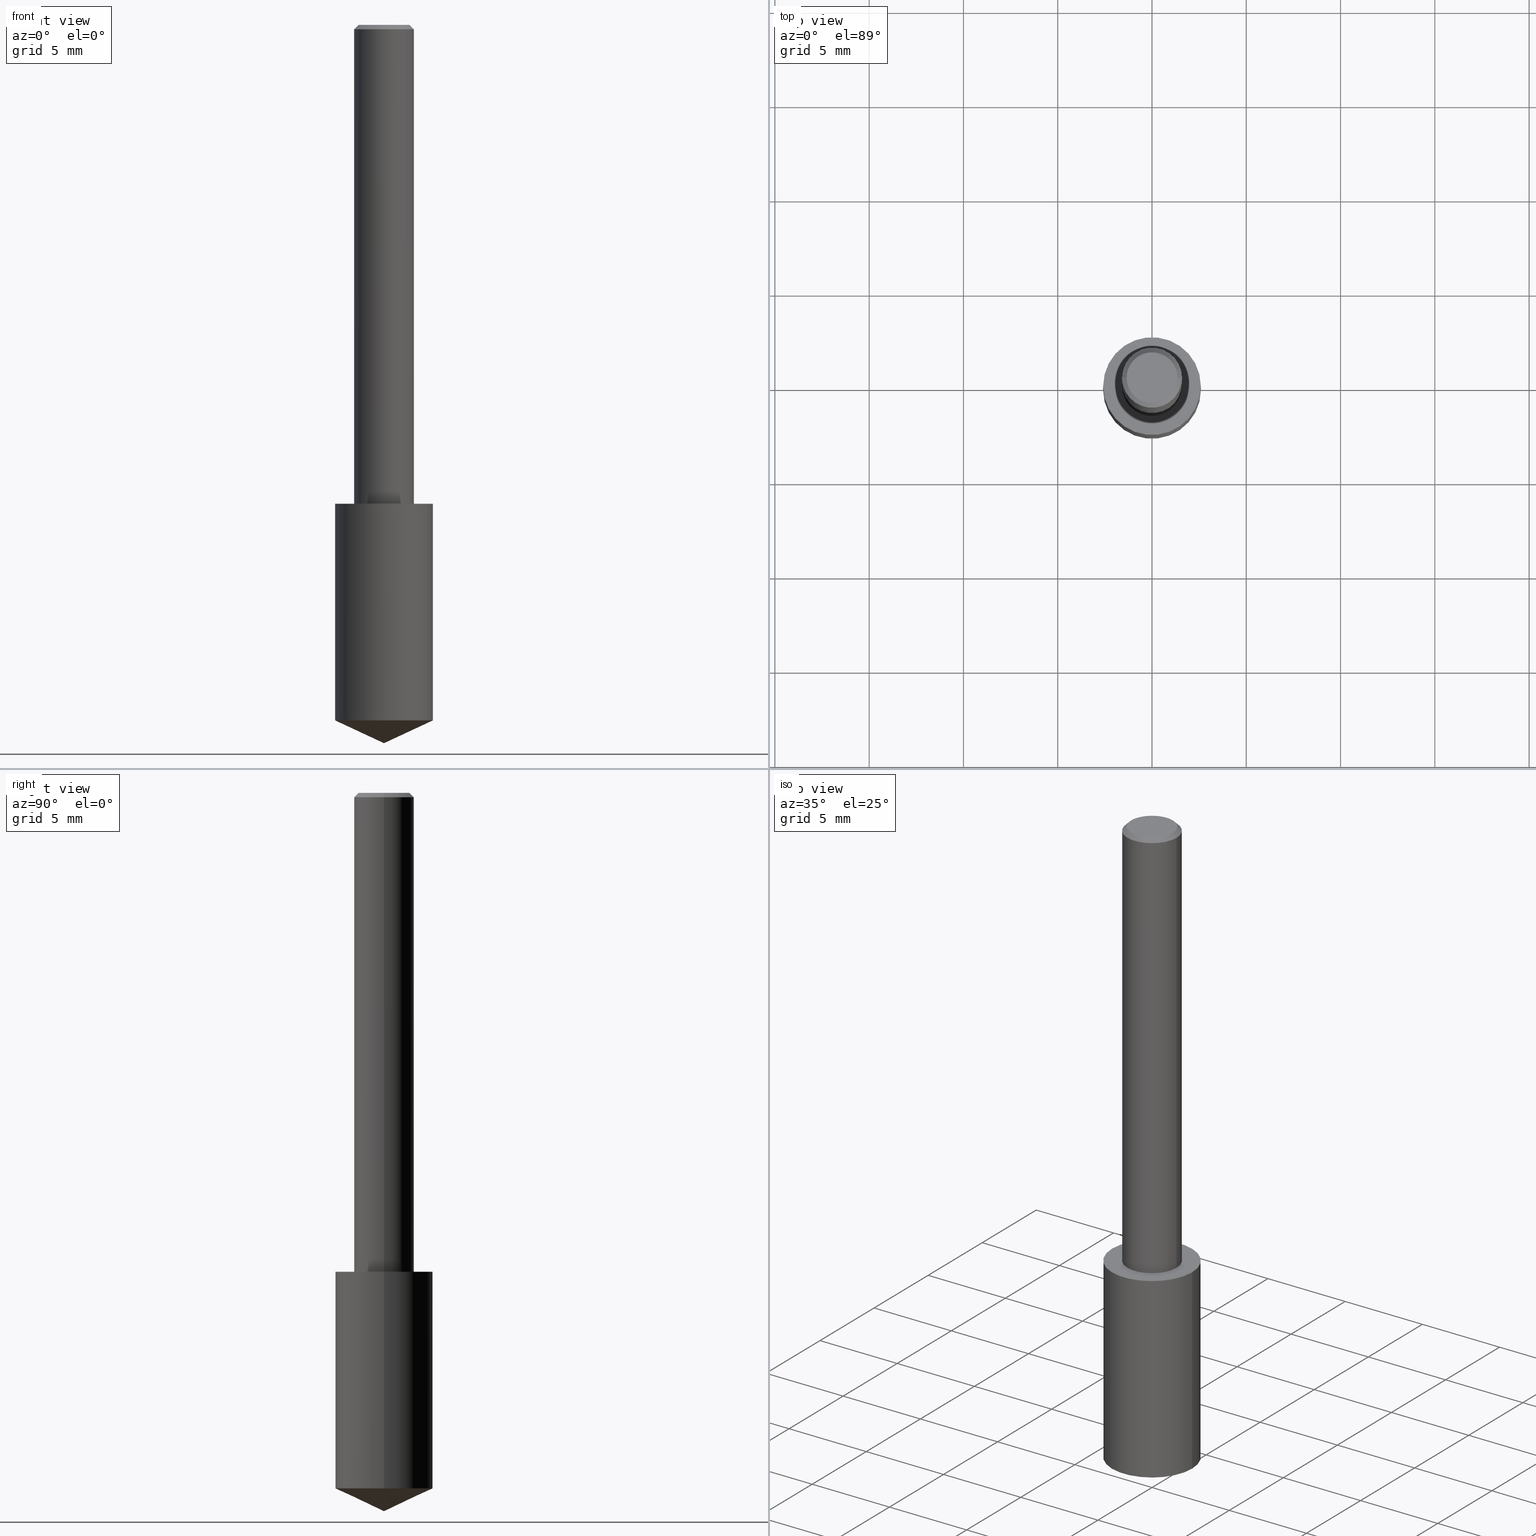
[diagram: canonical four-view strip — front | top / right | iso, engineering-drawing reading convention]
A machine part, canonical four-view strip (front | top / right | iso — engineering-drawing reading convention). The complete STEP part file that produces these views, byte-faithful:
ISO-10303-21;
HEADER;
FILE_DESCRIPTION (( 'STEP AP203' ),
    '1' );
FILE_NAME ('06138.STEP',
    '2024-04-30T18:30:47',
    ( '' ),
    ( '' ),
    'SwSTEP 2.0',
    'SolidWorks 2023',
    '' );
FILE_SCHEMA (( 'CONFIG_CONTROL_DESIGN' ));
ENDSEC;

DATA;
#1 = DATE_TIME_ROLE ( 'classification_date' ) ;
#2 = CIRCLE ( 'NONE', #302, 0.06250000000000012490 ) ;
#3 = DIRECTION ( 'NONE',  ( -2.438088387897960049E-29, 3.491481338843145188E-15, 1.000000000000000000 ) ) ;
#4 = APPROVAL_PERSON_ORGANIZATION ( #162, #103, #321 ) ;
#5 = MECHANICAL_CONTEXT ( 'NONE', #170, 'mechanical' ) ;
#6 = DIRECTION ( 'NONE',  ( 2.445468806185136597E-29, -3.491481338843145583E-15, -1.000000000000000000 ) ) ;
#7 = CARTESIAN_POINT ( 'NONE',  ( -0.06250000000000012490, -1.318017778347335489E-15, -1.000000000000000222 ) ) ;
#8 = DIRECTION ( 'NONE',  ( 1.000000000000000000, -6.982962677686266711E-15, 0.000000000000000000 ) ) ;
#9 = CARTESIAN_POINT ( 'NONE',  ( -0.1019999999999999796, -4.346401760155420845E-15, -1.452436618868190976 ) ) ;
#10 = PRODUCT ( '06138', '06138', '', ( #5 ) ) ;
#11 = ORIENTED_EDGE ( 'NONE', *, *, #274, .F. ) ;
#12 = ADVANCED_FACE ( 'NONE', ( #126 ), #179, .F. ) ;
#13 = ORIENTED_EDGE ( 'NONE', *, *, #211, .F. ) ;
#14 = VERTEX_POINT ( 'NONE', #284 ) ;
#15 = ORIENTED_EDGE ( 'NONE', *, *, #274, .T. ) ;
#16 = CIRCLE ( 'NONE', #66, 0.06250000000000000000 ) ;
#17 = EDGE_LOOP ( 'NONE', ( #332, #44, #277 ) ) ;
#18 = FACE_OUTER_BOUND ( 'NONE', #310, .T. ) ;
#19 = COORDINATED_UNIVERSAL_TIME_OFFSET ( 5, 0, .BEHIND. ) ;
#20 = APPROVAL_PERSON_ORGANIZATION ( #317, #271, #207 ) ;
#21 = DATE_AND_TIME ( #186, #32 ) ;
#22 = AXIS2_PLACEMENT_3D ( 'NONE', #197, #220, #163 ) ;
#23 = CARTESIAN_POINT ( 'NONE',  ( 2.292627005798582375E-31, -3.273263755165473266E-17, -0.009375000000000069042 ) ) ;
#24 = ADVANCED_FACE ( 'NONE', ( #18 ), #136, .F. ) ;
#25 = DIRECTION ( 'NONE',  ( -2.445468806185136597E-29, 3.491481338843145583E-15, 1.000000000000000000 ) ) ;
#26 = COORDINATED_UNIVERSAL_TIME_OFFSET ( 5, 0, .BEHIND. ) ;
#27 = DIRECTION ( 'NONE',  ( -2.445468806185136597E-29, 3.491481338843145583E-15, 1.000000000000000000 ) ) ;
#28 =( CONVERSION_BASED_UNIT ( 'INCH', #52 ) LENGTH_UNIT ( ) NAMED_UNIT ( #288 ) );
#29 = DIRECTION ( 'NONE',  ( 0.9063077870366522681, -4.853149677051413500E-15, 0.4226182617406944453 ) ) ;
#30 = CIRCLE ( 'NONE', #222, 0.06250000000000000000 ) ;
#31 = CARTESIAN_POINT ( 'NONE',  ( -9.261009624683002666E-28, 1.322226732217803884E-13, 37.87007874015748143 ) ) ;
#32 = LOCAL_TIME ( 14, 30, 47.00000000000000000, #137 ) ;
#33 = DIRECTION ( 'NONE',  ( -2.445468806185136877E-29, 3.491481338843145188E-15, 1.000000000000000000 ) ) ;
#34 = DIRECTION ( 'NONE',  ( -2.445468806185136597E-29, 3.491481338843145583E-15, 1.000000000000000000 ) ) ;
#35 = DIRECTION ( 'NONE',  ( -2.445468806185136877E-29, 3.491481338843145188E-15, 1.000000000000000000 ) ) ;
#36 = AXIS2_PLACEMENT_3D ( 'NONE', #133, #315, #262 ) ;
#37 = PRODUCT_DEFINITION_FORMATION_WITH_SPECIFIED_SOURCE ( 'ANY', '', #10, .NOT_KNOWN. ) ;
#38 = ADVANCED_FACE ( 'NONE', ( #286 ), #130, .T. ) ;
#39 = UNCERTAINTY_MEASURE_WITH_UNIT (LENGTH_MEASURE( 1.000000000000000082E-05 ), #28, 'distance_accuracy_value', 'NONE');
#40 = ORIENTED_EDGE ( 'NONE', *, *, #121, .T. ) ;
#41 = LINE ( 'NONE', #123, #147 ) ;
#42 = EDGE_LOOP ( 'NONE', ( #122, #334, #152, #13 ) ) ;
#43 = CC_DESIGN_APPROVAL ( #153, ( #37 ) ) ;
#44 = ORIENTED_EDGE ( 'NONE', *, *, #96, .T. ) ;
#45 = ORIENTED_EDGE ( 'NONE', *, *, #93, .T. ) ;
#46 = EDGE_LOOP ( 'NONE', ( #330, #45, #11 ) ) ;
#47 = EDGE_CURVE ( 'NONE', #253, #151, #199, .T. ) ;
#48 = CC_DESIGN_SECURITY_CLASSIFICATION ( #92, ( #37 ) ) ;
#49 = CARTESIAN_POINT ( 'NONE',  ( 3.380586089561100966E-29, -2.152340165478311368E-15, -1.000000000000000222 ) ) ;
#50 = APPLICATION_PROTOCOL_DEFINITION ( 'international standard', 'config_control_design', 1994, #170 ) ;
#51 = DIRECTION ( 'NONE',  ( 1.000000000000000000, -6.982962677686266711E-15, 4.876176775795935793E-29 ) ) ;
#52 = LENGTH_MEASURE_WITH_UNIT ( LENGTH_MEASURE( 0.02539999999999999897 ), #325 );
#53 = FACE_OUTER_BOUND ( 'NONE', #71, .T. ) ;
#54 = AXIS2_PLACEMENT_3D ( 'NONE', #214, #232, #187 ) ;
#55 = DIRECTION ( 'NONE',  ( 1.000000000000000000, 0.000000000000000000, 0.000000000000000000 ) ) ;
#56 = SECURITY_CLASSIFICATION_LEVEL ( 'unclassified' ) ;
#57 = DIRECTION ( 'NONE',  ( 2.445468806185136597E-29, -3.491481338843145583E-15, -1.000000000000000000 ) ) ;
#58 = ADVANCED_FACE ( 'NONE', ( #316 ), #156, .T. ) ;
#59 = DATE_AND_TIME ( #87, #336 ) ;
#60 = CARTESIAN_POINT ( 'NONE',  ( 2.445468806185137438E-29, -3.491481338843146371E-15, -1.000000000000000222 ) ) ;
#61 = AXIS2_PLACEMENT_3D ( 'NONE', #291, #27, #238 ) ;
#62 = CARTESIAN_POINT ( 'NONE',  ( 2.292627005798582375E-31, -3.273263755165473266E-17, -0.009375000000000069042 ) ) ;
#63 = DIRECTION ( 'NONE',  ( 1.000000000000000000, -6.982962677686265922E-15, 4.876176775795935793E-29 ) ) ;
#64 = FACE_OUTER_BOUND ( 'NONE', #17, .T. ) ;
#65 = EDGE_CURVE ( 'NONE', #97, #67, #283, .T. ) ;
#66 = AXIS2_PLACEMENT_3D ( 'NONE', #23, #215, #86 ) ;
#67 = VERTEX_POINT ( 'NONE', #9 ) ;
#68 = CC_DESIGN_DATE_AND_TIME_ASSIGNMENT ( #237, #1, ( #92 ) ) ;
#69 = ORIENTED_EDGE ( 'NONE', *, *, #47, .T. ) ;
#70 = CLOSED_SHELL ( 'NONE', ( #249, #280, #172, #58, #24 ) ) ;
#71 = EDGE_LOOP ( 'NONE', ( #125, #205, #306, #40 ) ) ;
#72 = ORIENTED_EDGE ( 'NONE', *, *, #149, .T. ) ;
#73 = EDGE_CURVE ( 'NONE', #279, #303, #41, .T. ) ;
#74 = ORIENTED_EDGE ( 'NONE', *, *, #180, .F. ) ;
#75 = LINE ( 'NONE', #234, #231 ) ;
#76 = DIRECTION ( 'NONE',  ( 2.438088387897960049E-29, -3.491481338843145188E-15, -1.000000000000000000 ) ) ;
#77 = AXIS2_PLACEMENT_3D ( 'NONE', #49, #104, #154 ) ;
#78 =( NAMED_UNIT ( * ) PLANE_ANGLE_UNIT ( ) SI_UNIT ( $, .RADIAN. ) );
#79 = LINE ( 'NONE', #320, #208 ) ;
#80 = ADVANCED_FACE ( 'NONE', ( #53 ), #335, .T. ) ;
#81 = PERSON_AND_ORGANIZATION ( #91, #223 ) ;
#82 = CARTESIAN_POINT ( 'NONE',  ( 3.551888444403171231E-29, -5.071155350630722890E-15, -1.452436618868190976 ) ) ;
#83 = CALENDAR_DATE ( 2024, 30, 4 ) ;
#84 = AXIS2_PLACEMENT_3D ( 'NONE', #213, #135, #107 ) ;
#85 = LOCAL_TIME ( 14, 30, 47.00000000000000000, #26 ) ;
#86 = DIRECTION ( 'NONE',  ( 1.000000000000000000, -6.982962677686266711E-15, 0.000000000000000000 ) ) ;
#87 = CALENDAR_DATE ( 2024, 30, 4 ) ;
#88 = CARTESIAN_POINT ( 'NONE',  ( -0.06250000000000006939, 4.440892098500631092E-16, -3.074334431409319267E-30 ) ) ;
#89 = CARTESIAN_POINT ( 'NONE',  ( 0.06250000000000012490, -3.927916506198539224E-15, -1.000000000000000222 ) ) ;
#90 = DIRECTION ( 'NONE',  ( 1.000000000000000000, -6.982962677686266711E-15, 0.000000000000000000 ) ) ;
#91 = PERSON ( 'UNSPECIFIED', 'UNSPECIFIED', 'UNSPECIFIED', ('UNSPECIFIED'), ('UNSPECIFIED'), ('UNSPECIFIED') ) ;
#92 = SECURITY_CLASSIFICATION ( '', '', #56 ) ;
#93 = EDGE_CURVE ( 'NONE', #14, #97, #293, .T. ) ;
#94 = CARTESIAN_POINT ( 'NONE',  ( -0.06250000000000000000, -1.318017778347336672E-15, -0.009375000000000069042 ) ) ;
#95 = AXIS2_PLACEMENT_3D ( 'NONE', #108, #258, #51 ) ;
#96 = EDGE_CURVE ( 'NONE', #14, #67, #79, .T. ) ;
#97 = VERTEX_POINT ( 'NONE', #184 ) ;
#98 = ORIENTED_EDGE ( 'NONE', *, *, #141, .F. ) ;
#99 = CIRCLE ( 'NONE', #84, 0.05312499999999999861 ) ;
#100 = ORIENTED_EDGE ( 'NONE', *, *, #127, .T. ) ;
#101 = EDGE_LOOP ( 'NONE', ( #150, #178 ) ) ;
#102 = DIRECTION ( 'NONE',  ( 1.000000000000000000, -6.982962677686266711E-15, 4.876176775795935793E-29 ) ) ;
#103 = APPROVAL ( #295, 'UNSPECIFIED' ) ;
#104 = DIRECTION ( 'NONE',  ( 2.438088387897960049E-29, -3.491481338843145188E-15, -1.000000000000000000 ) ) ;
#105 = AXIS2_PLACEMENT_3D ( 'NONE', #206, #311, #301 ) ;
#106 =( NAMED_UNIT ( * ) SI_UNIT ( $, .STERADIAN. ) SOLID_ANGLE_UNIT ( ) );
#107 = DIRECTION ( 'NONE',  ( 1.000000000000000000, -6.982962677686266711E-15, 4.876176628004948512E-29 ) ) ;
#108 = CARTESIAN_POINT ( 'NONE',  ( 0.000000000000000000, 0.000000000000000000, 0.000000000000000000 ) ) ;
#109 = PERSON_AND_ORGANIZATION ( #91, #223 ) ;
#110 = DIRECTION ( 'NONE',  ( -0.7071067811865450192, 2.468850131082230634E-15, -0.7071067811865500152 ) ) ;
#111 = CARTESIAN_POINT ( 'NONE',  ( -0.05312499999999999861, 3.873362110279099094E-16, 3.061616995216862494E-21 ) ) ;
#112 = CIRCLE ( 'NONE', #268, 0.1019999999999999934 ) ;
#113 = APPLICATION_PROTOCOL_DEFINITION ( 'international standard', 'config_control_design', 1994, #176 ) ;
#114 = DIRECTION ( 'NONE',  ( -2.445468806185136877E-29, 3.491481338843145188E-15, 1.000000000000000000 ) ) ;
#115 = CYLINDRICAL_SURFACE ( 'NONE', #139, 0.1019999999999999934 ) ;
#116 = LINE ( 'NONE', #140, #251 ) ;
#117 = PRODUCT_DEFINITION ( 'UNKNOWN', '', #37, #198 ) ;
#118 = CIRCLE ( 'NONE', #105, 0.1019999999999999934 ) ;
#119 = CARTESIAN_POINT ( 'NONE',  ( 0.05312499999999999861, -4.129888592719939842E-16, 3.061617000609493422E-21 ) ) ;
#120 = SHAPE_DEFINITION_REPRESENTATION ( #327, #146 ) ;
#121 = EDGE_CURVE ( 'NONE', #202, #303, #16, .T. ) ;
#122 = ORIENTED_EDGE ( 'NONE', *, *, #65, .T. ) ;
#123 = CARTESIAN_POINT ( 'NONE',  ( 0.06250000000000006939, -4.364351673553921624E-16, 3.047610484872463374E-30 ) ) ;
#124 = ORIENTED_EDGE ( 'NONE', *, *, #73, .F. ) ;
#125 = ORIENTED_EDGE ( 'NONE', *, *, #318, .F. ) ;
#126 = FACE_OUTER_BOUND ( 'NONE', #200, .T. ) ;
#127 = EDGE_CURVE ( 'NONE', #304, #279, #131, .T. ) ;
#128 = CALENDAR_DATE ( 2024, 30, 4 ) ;
#129 = DIRECTION ( 'NONE',  ( -0.9063077870366522681, 7.915267918739014631E-15, 0.4226182617406944453 ) ) ;
#130 = CYLINDRICAL_SURFACE ( 'NONE', #95, 0.06250000000000006939 ) ;
#131 = CIRCLE ( 'NONE', #36, 0.06250000000000012490 ) ;
#132 = PERSON_AND_ORGANIZATION_ROLE ( 'classification_officer' ) ;
#133 = CARTESIAN_POINT ( 'NONE',  ( 2.445468806185137438E-29, -3.491481338843146371E-15, -1.000000000000000222 ) ) ;
#134 = CALENDAR_DATE ( 2024, 30, 4 ) ;
#135 = DIRECTION ( 'NONE',  ( -2.445468806185136597E-29, 3.491481338843145583E-15, 1.000000000000000000 ) ) ;
#136 = PLANE ( 'NONE',  #77 ) ;
#137 = COORDINATED_UNIVERSAL_TIME_OFFSET ( 5, 0, .BEHIND. ) ;
#138 = CARTESIAN_POINT ( 'NONE',  ( 0.000000000000000000, 0.000000000000000000, 0.000000000000000000 ) ) ;
#139 = AXIS2_PLACEMENT_3D ( 'NONE', #60, #34, #8 ) ;
#140 = CARTESIAN_POINT ( 'NONE',  ( 0.1019999999999999934, -4.203743531967145466E-15, -1.000000000000000222 ) ) ;
#141 = EDGE_CURVE ( 'NONE', #151, #202, #75, .T. ) ;
#142 = DIRECTION ( 'NONE',  ( 0.7071067811865450192, -7.319954787623246579E-15, -0.7071067811865500152 ) ) ;
#143 = CLOSED_SHELL ( 'NONE', ( #285, #38, #218, #175, #80, #12 ) ) ;
#144 = CC_DESIGN_APPROVAL ( #271, ( #117 ) ) ;
#145 = DIRECTION ( 'NONE',  ( 1.000000000000000000, -6.982962677686266711E-15, 0.000000000000000000 ) ) ;
#146 = ADVANCED_BREP_SHAPE_REPRESENTATION ( '06138', ( #329, #221, #242 ), #164 ) ;
#147 = VECTOR ( 'NONE', #305, 39.37007874015748143 ) ;
#148 = ORIENTED_EDGE ( 'NONE', *, *, #180, .T. ) ;
#149 = EDGE_CURVE ( 'NONE', #151, #253, #99, .T. ) ;
#150 = ORIENTED_EDGE ( 'NONE', *, *, #299, .F. ) ;
#151 = VERTEX_POINT ( 'NONE', #111 ) ;
#152 = ORIENTED_EDGE ( 'NONE', *, *, #265, .F. ) ;
#153 = APPROVAL ( #292, 'UNSPECIFIED' ) ;
#154 = DIRECTION ( 'NONE',  ( -1.000000000000000000, 6.982962677686265922E-15, -4.876176775795935793E-29 ) ) ;
#155 = CARTESIAN_POINT ( 'NONE',  ( 0.000000000000000000, 0.000000000000000000, 0.000000000000000000 ) ) ;
#156 = CYLINDRICAL_SURFACE ( 'NONE', #188, 0.1019999999999999934 ) ;
#157 = APPROVAL_DATE_TIME ( #239, #271 ) ;
#158 = CIRCLE ( 'NONE', #22, 0.1019999999999999934 ) ;
#159 = PERSON_AND_ORGANIZATION ( #91, #223 ) ;
#160 = CARTESIAN_POINT ( 'NONE',  ( 3.668203209277704895E-29, -5.237222008264718177E-15, -1.500000000000000222 ) ) ;
#161 = PRODUCT_RELATED_PRODUCT_CATEGORY ( 'detail', '', ( #10 ) ) ;
#162 = PERSON_AND_ORGANIZATION ( #91, #223 ) ;
#163 = DIRECTION ( 'NONE',  ( 1.000000000000000000, -6.982962677686266711E-15, 0.000000000000000000 ) ) ;
#164 =( GEOMETRIC_REPRESENTATION_CONTEXT ( 3 ) GLOBAL_UNCERTAINTY_ASSIGNED_CONTEXT ( ( #39 ) ) GLOBAL_UNIT_ASSIGNED_CONTEXT ( ( #28, #78, #106 ) ) REPRESENTATION_CONTEXT ( 'NONE', 'WORKASPACE' ) );
#165 = CC_DESIGN_PERSON_AND_ORGANIZATION_ASSIGNMENT ( #109, #212, ( #37 ) ) ;
#166 = CC_DESIGN_APPROVAL ( #103, ( #92 ) ) ;
#167 = DIRECTION ( 'NONE',  ( -2.445468806185136597E-29, 3.491481338843145583E-15, 1.000000000000000000 ) ) ;
#168 = DIRECTION ( 'NONE',  ( 1.000000000000000000, -6.982962677686264344E-15, 0.000000000000000000 ) ) ;
#169 = DIRECTION ( 'NONE',  ( -2.445468806185136597E-29, 3.491481338843145583E-15, 1.000000000000000000 ) ) ;
#170 = APPLICATION_CONTEXT ( 'configuration controlled 3d designs of mechanical parts and assemblies' ) ;
#171 = AXIS2_PLACEMENT_3D ( 'NONE', #138, #337, #102 ) ;
#172 = ADVANCED_FACE ( 'NONE', ( #209 ), #298, .T. ) ;
#173 = ORIENTED_EDGE ( 'NONE', *, *, #308, .F. ) ;
#174 = ORIENTED_EDGE ( 'NONE', *, *, #47, .F. ) ;
#175 = ADVANCED_FACE ( 'NONE', ( #190 ), #264, .T. ) ;
#176 = APPLICATION_CONTEXT ( 'configuration controlled 3d designs of mechanical parts and assemblies' ) ;
#177 = VECTOR ( 'NONE', #29, 39.37007874015748854 ) ;
#178 = ORIENTED_EDGE ( 'NONE', *, *, #127, .F. ) ;
#179 = PLANE ( 'NONE',  #319 ) ;
#180 = EDGE_CURVE ( 'NONE', #201, #229, #118, .T. ) ;
#181 = EDGE_LOOP ( 'NONE', ( #174, #257, #225, #98 ) ) ;
#182 = VECTOR ( 'NONE', #33, 39.37007874015748143 ) ;
#183 = DIRECTION ( 'NONE',  ( -1.000000000000000000, 6.982962677686265922E-15, -4.876176775795935793E-29 ) ) ;
#184 = CARTESIAN_POINT ( 'NONE',  ( 0.1019999999999999796, -5.783417543754722378E-15, -1.452436618868190976 ) ) ;
#185 = PERSON_AND_ORGANIZATION_ROLE ( 'design_owner' ) ;
#186 = CALENDAR_DATE ( 2024, 30, 4 ) ;
#187 = DIRECTION ( 'NONE',  ( 1.000000000000000000, -6.982962677686266711E-15, 4.876176628004948512E-29 ) ) ;
#188 = AXIS2_PLACEMENT_3D ( 'NONE', #210, #25, #313 ) ;
#189 = APPROVAL_STATUS ( 'not_yet_approved' ) ;
#190 = FACE_OUTER_BOUND ( 'NONE', #228, .T. ) ;
#191 = APPROVAL_DATE_TIME ( #21, #153 ) ;
#192 = PLANE ( 'NONE',  #307 ) ;
#193 = CC_DESIGN_PERSON_AND_ORGANIZATION_ASSIGNMENT ( #216, #290, ( #117 ) ) ;
#194 = CARTESIAN_POINT ( 'NONE',  ( -0.1019999999999999934, -2.766727748367844721E-15, -1.000000000000000222 ) ) ;
#195 = LOCAL_TIME ( 14, 30, 47.00000000000000000, #19 ) ;
#196 = CARTESIAN_POINT ( 'NONE',  ( 2.445468806185137438E-29, -3.491481338843146371E-15, -1.000000000000000222 ) ) ;
#197 = CARTESIAN_POINT ( 'NONE',  ( 2.445468806185136877E-29, -3.491481338843145977E-15, -1.000000000000000222 ) ) ;
#198 = DESIGN_CONTEXT ( 'detailed design', #176, 'design' ) ;
#199 = CIRCLE ( 'NONE', #54, 0.05312499999999999861 ) ;
#200 = EDGE_LOOP ( 'NONE', ( #72, #69 ) ) ;
#201 = VERTEX_POINT ( 'NONE', #326 ) ;
#202 = VERTEX_POINT ( 'NONE', #94 ) ;
#203 = CONICAL_SURFACE ( 'NONE', #278, 0.06250000000000000000, 0.7853981633974447263 ) ;
#204 = ORIENTED_EDGE ( 'NONE', *, *, #265, .T. ) ;
#205 = ORIENTED_EDGE ( 'NONE', *, *, #149, .F. ) ;
#206 = CARTESIAN_POINT ( 'NONE',  ( 2.445468806185136877E-29, -3.491481338843145977E-15, -1.000000000000000222 ) ) ;
#207 = APPROVAL_ROLE ( '' ) ;
#208 = VECTOR ( 'NONE', #129, 39.37007874015748854 ) ;
#209 = FACE_OUTER_BOUND ( 'NONE', #46, .T. ) ;
#210 = CARTESIAN_POINT ( 'NONE',  ( 2.445468806185137438E-29, -3.491481338843146371E-15, -1.000000000000000222 ) ) ;
#211 = EDGE_CURVE ( 'NONE', #97, #229, #116, .T. ) ;
#212 = PERSON_AND_ORGANIZATION_ROLE ( 'creator' ) ;
#213 = CARTESIAN_POINT ( 'NONE',  ( -7.487088864773345706E-50, 1.068957861474247695E-35, 3.061616997868395197E-21 ) ) ;
#214 = CARTESIAN_POINT ( 'NONE',  ( -7.487088864773345706E-50, 1.068957861474247695E-35, 3.061616997868395197E-21 ) ) ;
#215 = DIRECTION ( 'NONE',  ( -2.445468806185136597E-29, 3.491481338843145583E-15, 1.000000000000000000 ) ) ;
#216 = PERSON_AND_ORGANIZATION ( #91, #223 ) ;
#217 = DIRECTION ( 'NONE',  ( 1.000000000000000000, -6.982962677686266711E-15, 0.000000000000000000 ) ) ;
#218 = ADVANCED_FACE ( 'NONE', ( #248 ), #192, .F. ) ;
#219 = CARTESIAN_POINT ( 'NONE',  ( 0.06250000000000000000, -4.691678049070464390E-16, -0.009375000000000069042 ) ) ;
#220 = DIRECTION ( 'NONE',  ( -2.445468806185136597E-29, 3.491481338843145583E-15, 1.000000000000000000 ) ) ;
#221 = MANIFOLD_SOLID_BREP ( 'Body-Move/Copy2[2]', #143 ) ;
#222 = AXIS2_PLACEMENT_3D ( 'NONE', #297, #169, #217 ) ;
#223 = ORGANIZATION ( 'UNSPECIFIED', 'UNSPECIFIED', '' ) ;
#224 = CARTESIAN_POINT ( 'NONE',  ( 2.445468806185137438E-29, -3.491481338843146371E-15, -1.000000000000000222 ) ) ;
#225 = ORIENTED_EDGE ( 'NONE', *, *, #246, .T. ) ;
#226 = VECTOR ( 'NONE', #142, 39.37007874015748143 ) ;
#227 = CC_DESIGN_PERSON_AND_ORGANIZATION_ASSIGNMENT ( #81, #185, ( #10 ) ) ;
#228 = EDGE_LOOP ( 'NONE', ( #333, #100, #275, #254 ) ) ;
#229 = VERTEX_POINT ( 'NONE', #267 ) ;
#230 = EDGE_LOOP ( 'NONE', ( #173, #15, #309, #74 ) ) ;
#231 = VECTOR ( 'NONE', #110, 39.37007874015748143 ) ;
#232 = DIRECTION ( 'NONE',  ( -2.445468806185136597E-29, 3.491481338843145583E-15, 1.000000000000000000 ) ) ;
#233 = PERSON_AND_ORGANIZATION ( #91, #223 ) ;
#234 = CARTESIAN_POINT ( 'NONE',  ( -0.06250000000000000000, 4.037025298037369491E-16, -0.009375000000000069042 ) ) ;
#235 = AXIS2_PLACEMENT_3D ( 'NONE', #82, #289, #276 ) ;
#236 = DATE_TIME_ROLE ( 'creation_date' ) ;
#237 = DATE_AND_TIME ( #134, #273 ) ;
#238 = DIRECTION ( 'NONE',  ( 1.000000000000000000, -6.982962677686266711E-15, 0.000000000000000000 ) ) ;
#239 = DATE_AND_TIME ( #128, #195 ) ;
#240 = EDGE_CURVE ( 'NONE', #304, #202, #269, .T. ) ;
#241 = FACE_OUTER_BOUND ( 'NONE', #181, .T. ) ;
#242 = AXIS2_PLACEMENT_3D ( 'NONE', #155, #314, #55 ) ;
#243 = APPROVAL_PERSON_ORGANIZATION ( #233, #153, #312 ) ;
#244 = FACE_OUTER_BOUND ( 'NONE', #42, .T. ) ;
#245 = DIRECTION ( 'NONE',  ( -2.445468806185136597E-29, 3.491481338843145583E-15, 1.000000000000000000 ) ) ;
#246 = EDGE_CURVE ( 'NONE', #303, #202, #30, .T. ) ;
#247 = AXIS2_PLACEMENT_3D ( 'NONE', #340, #57, #260 ) ;
#248 = FACE_OUTER_BOUND ( 'NONE', #101, .T. ) ;
#249 = ADVANCED_FACE ( 'NONE', ( #244 ), #115, .T. ) ;
#250 = EDGE_LOOP ( 'NONE', ( #282, #281, #252, #124 ) ) ;
#251 = VECTOR ( 'NONE', #35, 39.37007874015748143 ) ;
#252 = ORIENTED_EDGE ( 'NONE', *, *, #246, .F. ) ;
#253 = VERTEX_POINT ( 'NONE', #119 ) ;
#254 = ORIENTED_EDGE ( 'NONE', *, *, #121, .F. ) ;
#255 = CC_DESIGN_PERSON_AND_ORGANIZATION_ASSIGNMENT ( #338, #287, ( #37 ) ) ;
#256 = VECTOR ( 'NONE', #114, 39.37007874015748143 ) ;
#257 = ORIENTED_EDGE ( 'NONE', *, *, #318, .T. ) ;
#258 = DIRECTION ( 'NONE',  ( -2.445468806185136597E-29, 3.491481338843145583E-15, 1.000000000000000000 ) ) ;
#259 = DATE_AND_TIME ( #83, #85 ) ;
#260 = DIRECTION ( 'NONE',  ( -1.000000000000000000, 6.982962677686266711E-15, 0.000000000000000000 ) ) ;
#261 = COORDINATED_UNIVERSAL_TIME_OFFSET ( 5, 0, .BEHIND. ) ;
#262 = DIRECTION ( 'NONE',  ( 1.000000000000000000, -6.982962677686264344E-15, 0.000000000000000000 ) ) ;
#263 = COORDINATED_UNIVERSAL_TIME_OFFSET ( 5, 0, .BEHIND. ) ;
#264 = CYLINDRICAL_SURFACE ( 'NONE', #171, 0.06250000000000006939 ) ;
#265 = EDGE_CURVE ( 'NONE', #229, #201, #158, .T. ) ;
#266 = APPROVAL_DATE_TIME ( #59, #103 ) ;
#267 = CARTESIAN_POINT ( 'NONE',  ( 0.1019999999999999934, -4.203743531967145466E-15, -1.000000000000000222 ) ) ;
#268 = AXIS2_PLACEMENT_3D ( 'NONE', #296, #245, #90 ) ;
#269 = LINE ( 'NONE', #88, #256 ) ;
#270 = LINE ( 'NONE', #300, #226 ) ;
#271 = APPROVAL ( #189, 'UNSPECIFIED' ) ;
#272 = DIRECTION ( 'NONE',  ( -2.445468806185136597E-29, 3.491481338843145583E-15, 1.000000000000000000 ) ) ;
#273 = LOCAL_TIME ( 14, 30, 47.00000000000000000, #261 ) ;
#274 = EDGE_CURVE ( 'NONE', #67, #97, #112, .T. ) ;
#275 = ORIENTED_EDGE ( 'NONE', *, *, #73, .T. ) ;
#276 = DIRECTION ( 'NONE',  ( 1.000000000000000000, -6.982962677686266711E-15, 0.000000000000000000 ) ) ;
#277 = ORIENTED_EDGE ( 'NONE', *, *, #65, .F. ) ;
#278 = AXIS2_PLACEMENT_3D ( 'NONE', #62, #6, #322 ) ;
#279 = VERTEX_POINT ( 'NONE', #89 ) ;
#280 = ADVANCED_FACE ( 'NONE', ( #64 ), #331, .T. ) ;
#281 = ORIENTED_EDGE ( 'NONE', *, *, #240, .T. ) ;
#282 = ORIENTED_EDGE ( 'NONE', *, *, #299, .T. ) ;
#283 = CIRCLE ( 'NONE', #235, 0.1019999999999999934 ) ;
#284 = CARTESIAN_POINT ( 'NONE',  ( 3.668203209277704895E-29, -5.237222008264718177E-15, -1.500000000000000222 ) ) ;
#285 = ADVANCED_FACE ( 'NONE', ( #241 ), #203, .T. ) ;
#286 = FACE_OUTER_BOUND ( 'NONE', #250, .T. ) ;
#287 = PERSON_AND_ORGANIZATION_ROLE ( 'design_supplier' ) ;
#288 = DIMENSIONAL_EXPONENTS ( 1.000000000000000000, 0.000000000000000000, 0.000000000000000000, 0.000000000000000000, 0.000000000000000000, 0.000000000000000000, 0.000000000000000000 ) ;
#289 = DIRECTION ( 'NONE',  ( -2.445468806185136597E-29, 3.491481338843145583E-15, 1.000000000000000000 ) ) ;
#290 = PERSON_AND_ORGANIZATION_ROLE ( 'creator' ) ;
#291 = CARTESIAN_POINT ( 'NONE',  ( -9.261009624683002666E-28, 1.322226732217803884E-13, 37.87007874015748143 ) ) ;
#292 = APPROVAL_STATUS ( 'not_yet_approved' ) ;
#293 = LINE ( 'NONE', #160, #177 ) ;
#294 = CARTESIAN_POINT ( 'NONE',  ( -3.743544432386672853E-50, 5.344789307371238476E-36, 1.530808498934197599E-21 ) ) ;
#295 = APPROVAL_STATUS ( 'not_yet_approved' ) ;
#296 = CARTESIAN_POINT ( 'NONE',  ( 3.551888444403171231E-29, -5.071155350630722890E-15, -1.452436618868190976 ) ) ;
#297 = CARTESIAN_POINT ( 'NONE',  ( 2.292627005798582375E-31, -3.273263755165473266E-17, -0.009375000000000069042 ) ) ;
#298 = CONICAL_SURFACE ( 'NONE', #61, 84.42940631927518780, 1.134464013796319781 ) ;
#299 = EDGE_CURVE ( 'NONE', #279, #304, #2, .T. ) ;
#300 = CARTESIAN_POINT ( 'NONE',  ( 0.06250000000000000000, -4.615137624123754923E-16, -0.009375000000000069042 ) ) ;
#301 = DIRECTION ( 'NONE',  ( 1.000000000000000000, -6.982962677686266711E-15, 0.000000000000000000 ) ) ;
#302 = AXIS2_PLACEMENT_3D ( 'NONE', #196, #167, #168 ) ;
#303 = VERTEX_POINT ( 'NONE', #219 ) ;
#304 = VERTEX_POINT ( 'NONE', #7 ) ;
#305 = DIRECTION ( 'NONE',  ( -2.445468806185136877E-29, 3.491481338843145188E-15, 1.000000000000000000 ) ) ;
#306 = ORIENTED_EDGE ( 'NONE', *, *, #141, .T. ) ;
#307 = AXIS2_PLACEMENT_3D ( 'NONE', #224, #3, #63 ) ;
#308 = EDGE_CURVE ( 'NONE', #67, #201, #323, .T. ) ;
#309 = ORIENTED_EDGE ( 'NONE', *, *, #211, .T. ) ;
#310 = EDGE_LOOP ( 'NONE', ( #204, #148 ) ) ;
#311 = DIRECTION ( 'NONE',  ( -2.445468806185136597E-29, 3.491481338843145583E-15, 1.000000000000000000 ) ) ;
#312 = APPROVAL_ROLE ( '' ) ;
#313 = DIRECTION ( 'NONE',  ( 1.000000000000000000, -6.982962677686266711E-15, 0.000000000000000000 ) ) ;
#314 = DIRECTION ( 'NONE',  ( 0.000000000000000000, 0.000000000000000000, 1.000000000000000000 ) ) ;
#315 = DIRECTION ( 'NONE',  ( -2.445468806185136597E-29, 3.491481338843145583E-15, 1.000000000000000000 ) ) ;
#316 = FACE_OUTER_BOUND ( 'NONE', #230, .T. ) ;
#317 = PERSON_AND_ORGANIZATION ( #91, #223 ) ;
#318 = EDGE_CURVE ( 'NONE', #253, #303, #270, .T. ) ;
#319 = AXIS2_PLACEMENT_3D ( 'NONE', #294, #76, #183 ) ;
#320 = CARTESIAN_POINT ( 'NONE',  ( 3.668203209277704895E-29, -5.237222008264718177E-15, -1.500000000000000222 ) ) ;
#321 = APPROVAL_ROLE ( '' ) ;
#322 = DIRECTION ( 'NONE',  ( -1.000000000000000000, 6.982962677686266711E-15, 0.000000000000000000 ) ) ;
#323 = LINE ( 'NONE', #194, #182 ) ;
#324 = CC_DESIGN_DATE_AND_TIME_ASSIGNMENT ( #259, #236, ( #117 ) ) ;
#325 =( LENGTH_UNIT ( ) NAMED_UNIT ( * ) SI_UNIT ( $, .METRE. ) );
#326 = CARTESIAN_POINT ( 'NONE',  ( -0.1019999999999999934, -3.556564754261631994E-15, -1.000000000000000222 ) ) ;
#327 = PRODUCT_DEFINITION_SHAPE ( 'NONE', 'NONE',  #117 ) ;
#328 = CC_DESIGN_PERSON_AND_ORGANIZATION_ASSIGNMENT ( #159, #132, ( #92 ) ) ;
#329 = MANIFOLD_SOLID_BREP ( 'Body-Move/Copy2[1]', #70 ) ;
#330 = ORIENTED_EDGE ( 'NONE', *, *, #96, .F. ) ;
#331 = CONICAL_SURFACE ( 'NONE', #339, 84.42940631927518780, 1.134464013796319781 ) ;
#332 = ORIENTED_EDGE ( 'NONE', *, *, #93, .F. ) ;
#333 = ORIENTED_EDGE ( 'NONE', *, *, #240, .F. ) ;
#334 = ORIENTED_EDGE ( 'NONE', *, *, #308, .T. ) ;
#335 = CONICAL_SURFACE ( 'NONE', #247, 0.06250000000000000000, 0.7853981633974447263 ) ;
#336 = LOCAL_TIME ( 14, 30, 47.00000000000000000, #263 ) ;
#337 = DIRECTION ( 'NONE',  ( -2.445468806185136597E-29, 3.491481338843145583E-15, 1.000000000000000000 ) ) ;
#338 = PERSON_AND_ORGANIZATION ( #91, #223 ) ;
#339 = AXIS2_PLACEMENT_3D ( 'NONE', #31, #272, #145 ) ;
#340 = CARTESIAN_POINT ( 'NONE',  ( 2.292627005798582375E-31, -3.273263755165473266E-17, -0.009375000000000069042 ) ) ;
ENDSEC;
END-ISO-10303-21;
